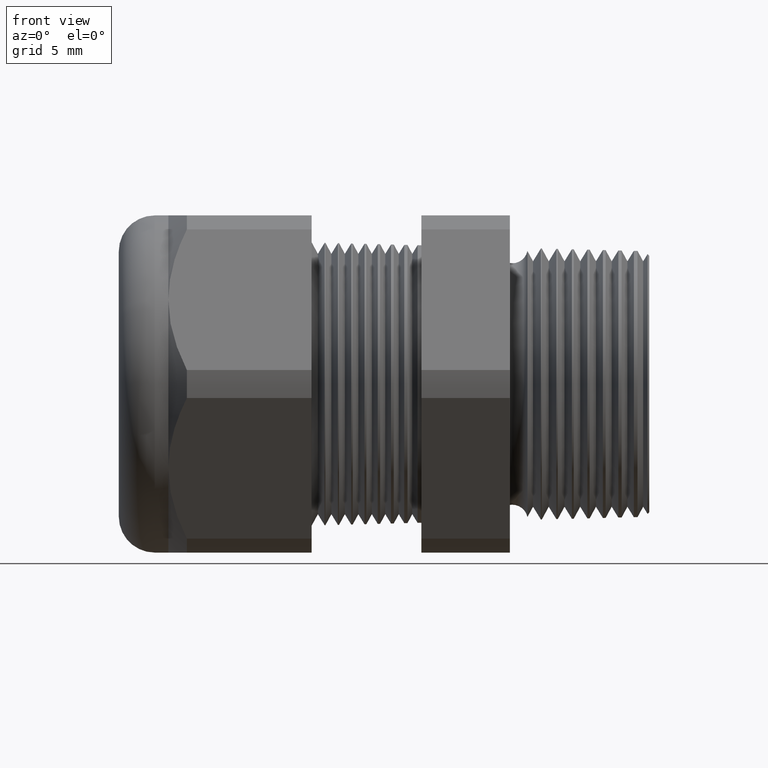
[diagram: clean part render]
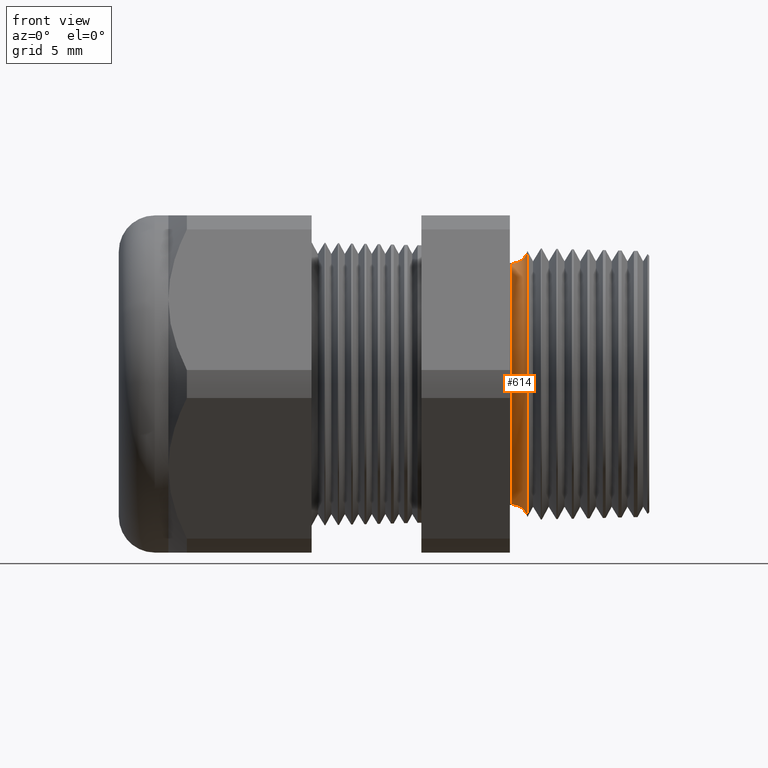
[diagram: same view with one face highlighted and labeled with its STEP entity id]
A machine part, front view. The second image highlights one B-rep face of the part: STEP entity #614.
In plain terms, the highlighted toroidal blend (fillet) surface has major radius 7.7078 mm and minor (blend) radius 0.889 mm.
Its self-contained STEP definition (entity closure, byte-faithful):
#603 = ORIENTED_EDGE ( 'NONE', *, *, #615, .F. ) ;
#604 = ORIENTED_EDGE ( 'NONE', *, *, #665, .F. ) ;
#606 = ORIENTED_EDGE ( 'NONE', *, *, #621, .T. ) ;
#607 = ORIENTED_EDGE ( 'NONE', *, *, #608, .T. ) ;
#608 = EDGE_CURVE ( 'NONE', #618, #610, #2085, .T. ) ;
#609 = VERTEX_POINT ( 'NONE', #2080 ) ;
#610 = VERTEX_POINT ( 'NONE', #2079 ) ;
#611 = VERTEX_POINT ( 'NONE', #2078 ) ;
#613 = EDGE_LOOP ( 'NONE', ( #606, #607, #603, #604 ) ) ;
#614 = ADVANCED_FACE ( 'NONE', ( #2077 ), #2075, .F. ) ;
#615 = EDGE_CURVE ( 'NONE', #609, #610, #2071, .T. ) ;
#618 = VERTEX_POINT ( 'NONE', #2061 ) ;
#621 = EDGE_CURVE ( 'NONE', #611, #618, #2119, .T. ) ;
#665 = EDGE_CURVE ( 'NONE', #611, #609, #2164, .T. ) ;
#2060 = CARTESIAN_POINT ( 'NONE',  ( -0.3049999999999999400, 3.716258236466510600E-017, 0.3034555137900915000 ) ) ;
#2061 = CARTESIAN_POINT ( 'NONE',  ( -0.3049999999999999400, 3.287631856764937300E-017, 0.2684555137900915300 ) ) ;
#2067 = DIRECTION ( 'NONE',  ( 0.0000000000000000000, 0.0000000000000000000, -1.000000000000000000 ) ) ;
#2068 = DIRECTION ( 'NONE',  ( 0.0000000000000000000, -1.000000000000000000, 0.0000000000000000000 ) ) ;
#2069 = CARTESIAN_POINT ( 'NONE',  ( -0.3049999999999999400, 0.0000000000000000000, -0.3034555137900915000 ) ) ;
#2070 = AXIS2_PLACEMENT_3D ( 'NONE', #2069, #2068, #2067 ) ;
#2071 = CIRCLE ( 'NONE', #2070, 0.03499999999999996900 ) ;
#2072 = DIRECTION ( 'NONE',  ( 0.0000000000000000000, 0.0000000000000000000, -1.000000000000000000 ) ) ;
#2073 = DIRECTION ( 'NONE',  ( 1.000000000000000000, 0.0000000000000000000, 0.0000000000000000000 ) ) ;
#2074 = AXIS2_PLACEMENT_3D ( 'NONE', #2076, #2073, #2072 ) ;
#2075 = TOROIDAL_SURFACE ( 'NONE', #2074, 0.3034555137900915000, 0.03499999999999994800 ) ;
#2076 = CARTESIAN_POINT ( 'NONE',  ( -0.3049999999999999400, 0.0000000000000000000, 0.0000000000000000000 ) ) ;
#2077 = FACE_OUTER_BOUND ( 'NONE', #613, .T. ) ;
#2078 = CARTESIAN_POINT ( 'NONE',  ( -0.2708463023710465100, 0.0000000000000000000, 0.2958053544276990100 ) ) ;
#2079 = CARTESIAN_POINT ( 'NONE',  ( -0.3049999999999999400, 0.0000000000000000000, -0.2684555137900915300 ) ) ;
#2080 = CARTESIAN_POINT ( 'NONE',  ( -0.2708463023710465100, 3.622570804705299400E-017, -0.2958053544276990100 ) ) ;
#2081 = DIRECTION ( 'NONE',  ( 0.0000000000000000000, 0.0000000000000000000, -1.000000000000000000 ) ) ;
#2082 = DIRECTION ( 'NONE',  ( 1.000000000000000000, 0.0000000000000000000, 0.0000000000000000000 ) ) ;
#2083 = CARTESIAN_POINT ( 'NONE',  ( -0.3049999999999999400, 0.0000000000000000000, 0.0000000000000000000 ) ) ;
#2084 = AXIS2_PLACEMENT_3D ( 'NONE', #2083, #2082, #2081 ) ;
#2085 = CIRCLE ( 'NONE', #2084, 0.2684555137900915300 ) ;
#2116 = DIRECTION ( 'NONE',  ( 0.0000000000000000000, 1.224646799147352700E-016, 1.000000000000000000 ) ) ;
#2117 = DIRECTION ( 'NONE',  ( 0.0000000000000000000, 1.000000000000000000, -1.224646799147353200E-016 ) ) ;
#2118 = AXIS2_PLACEMENT_3D ( 'NONE', #2060, #2117, #2116 ) ;
#2119 = CIRCLE ( 'NONE', #2118, 0.03499999999999996900 ) ;
#2160 = DIRECTION ( 'NONE',  ( 0.0000000000000000000, 0.0000000000000000000, 1.000000000000000000 ) ) ;
#2161 = DIRECTION ( 'NONE',  ( 1.000000000000000000, 0.0000000000000000000, 0.0000000000000000000 ) ) ;
#2162 = CARTESIAN_POINT ( 'NONE',  ( -0.2708463023710465100, 0.0000000000000000000, 0.0000000000000000000 ) ) ;
#2163 = AXIS2_PLACEMENT_3D ( 'NONE', #2162, #2161, #2160 ) ;
#2164 = CIRCLE ( 'NONE', #2163, 0.2958053544276990100 ) ;